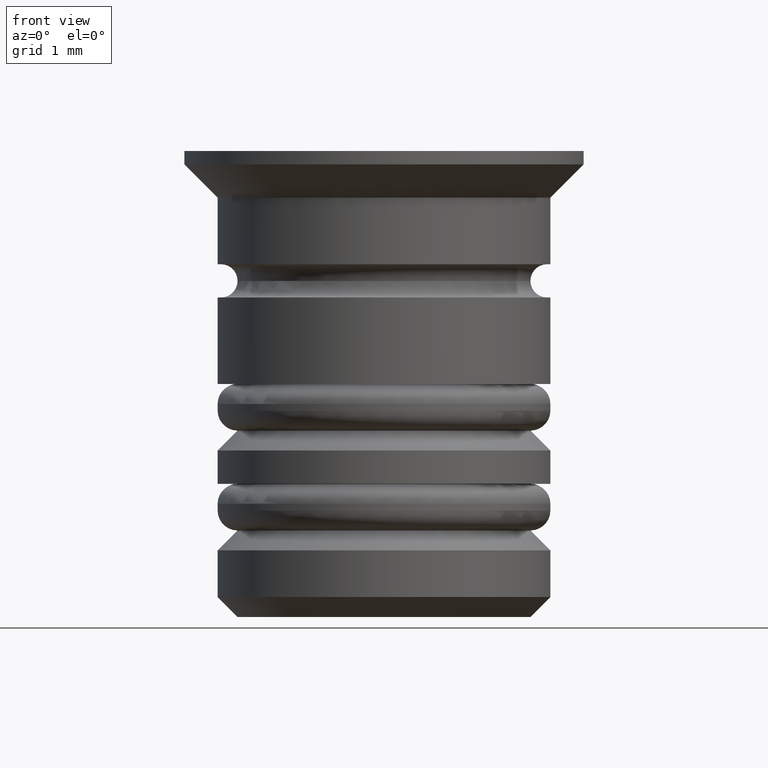
[diagram: clean part render]
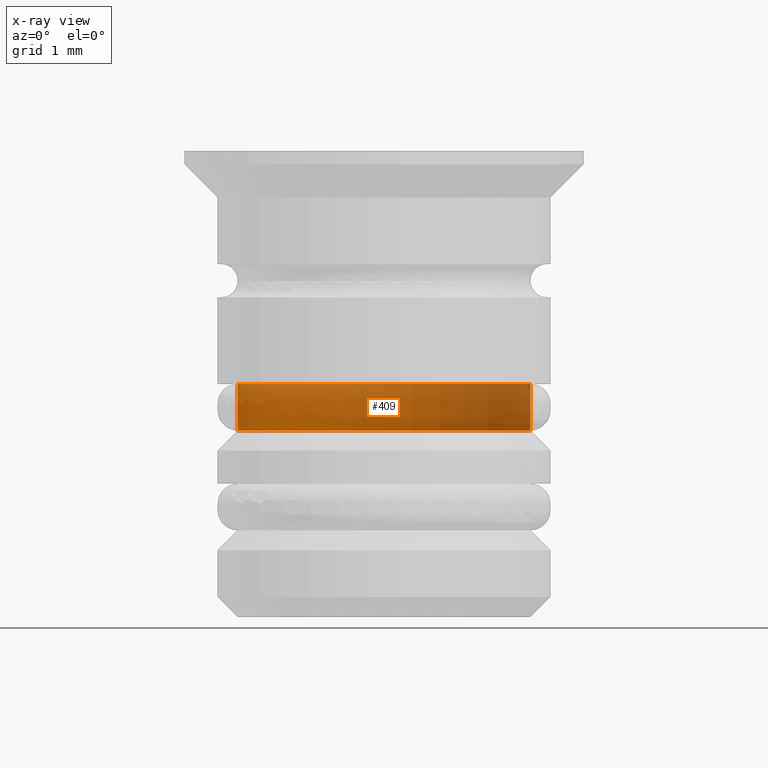
[diagram: x-ray — body ghosted, one internal face saturated and labeled with its STEP entity id]
A machine part, front view, then the same camera in x-ray: the body is ghosted and one INTERNAL B-rep face — a face not visible from any outside direction — is saturated and labeled: STEP entity #409.
In plain terms, the highlighted cylindrical surface (partial cylindrical patch) has radius 2.2 mm, axis along (-0, -0, 1).
Its self-contained STEP definition (entity closure, byte-faithful):
#39 = DIRECTION ( 'NONE',  ( -0.000000000000000000, -0.000000000000000000, 1.000000000000000000 ) ) ;
#80 = EDGE_CURVE ( 'NONE', #1558, #1422, #1689, .T. ) ;
#179 = CYLINDRICAL_SURFACE ( 'NONE', #326, 2.200000000000002398 ) ;
#196 = DIRECTION ( 'NONE',  ( -1.000000000000000000, 0.000000000000000000, 0.000000000000000000 ) ) ;
#255 = CARTESIAN_POINT ( 'NONE',  ( 2.200000000000002398, 0.000000000000000000, 0.000000000000000000 ) ) ;
#320 = CARTESIAN_POINT ( 'NONE',  ( -2.200000000000002398, 2.694222958124179965E-16, 0.000000000000000000 ) ) ;
#326 = AXIS2_PLACEMENT_3D ( 'NONE', #1310, #39, #613 ) ;
#338 = CARTESIAN_POINT ( 'NONE',  ( 2.200000000000002398, 0.000000000000000000, -4.200000000000010836 ) ) ;
#373 = VERTEX_POINT ( 'NONE', #338 ) ;
#409 = ADVANCED_FACE ( 'NONE', ( #1026 ), #179, .T. ) ;
#512 = ORIENTED_EDGE ( 'NONE', *, *, #1509, .T. ) ;
#530 = VECTOR ( 'NONE', #896, 1000.000000000000000 ) ;
#613 = DIRECTION ( 'NONE',  ( 1.000000000000000000, 0.000000000000000000, 0.000000000000000000 ) ) ;
#637 = DIRECTION ( 'NONE',  ( -0.000000000000000000, -0.000000000000000000, 1.000000000000000000 ) ) ;
#667 = VERTEX_POINT ( 'NONE', #1158 ) ;
#672 = ORIENTED_EDGE ( 'NONE', *, *, #80, .F. ) ;
#704 = EDGE_LOOP ( 'NONE', ( #512, #1052, #672, #1454 ) ) ;
#856 = CARTESIAN_POINT ( 'NONE',  ( -2.200000000000001954, 2.694222958124179472E-16, -3.500000000000003553 ) ) ;
#863 = VECTOR ( 'NONE', #1395, 1000.000000000000000 ) ;
#869 = LINE ( 'NONE', #320, #530 ) ;
#896 = DIRECTION ( 'NONE',  ( -0.000000000000000000, -0.000000000000000000, 1.000000000000000000 ) ) ;
#1007 = CARTESIAN_POINT ( 'NONE',  ( 2.200000000000001954, 0.000000000000000000, -3.500000000000003553 ) ) ;
#1026 = FACE_OUTER_BOUND ( 'NONE', #704, .T. ) ;
#1052 = ORIENTED_EDGE ( 'NONE', *, *, #1616, .T. ) ;
#1158 = CARTESIAN_POINT ( 'NONE',  ( -2.200000000000002398, 2.694222958124179965E-16, -4.200000000000010836 ) ) ;
#1222 = CARTESIAN_POINT ( 'NONE',  ( 0.000000000000000000, 0.000000000000000000, -3.500000000000003553 ) ) ;
#1243 = CIRCLE ( 'NONE', #1618, 2.200000000000002398 ) ;
#1310 = CARTESIAN_POINT ( 'NONE',  ( 0.000000000000000000, 0.000000000000000000, 0.000000000000000000 ) ) ;
#1351 = DIRECTION ( 'NONE',  ( 1.000000000000000000, 0.000000000000000000, 0.000000000000000000 ) ) ;
#1395 = DIRECTION ( 'NONE',  ( -0.000000000000000000, -0.000000000000000000, 1.000000000000000000 ) ) ;
#1422 = VERTEX_POINT ( 'NONE', #856 ) ;
#1436 = DIRECTION ( 'NONE',  ( -0.000000000000000000, -0.000000000000000000, 1.000000000000000000 ) ) ;
#1446 = CARTESIAN_POINT ( 'NONE',  ( 0.000000000000000000, 0.000000000000000000, -4.200000000000010836 ) ) ;
#1454 = ORIENTED_EDGE ( 'NONE', *, *, #1761, .F. ) ;
#1509 = EDGE_CURVE ( 'NONE', #373, #667, #1243, .T. ) ;
#1558 = VERTEX_POINT ( 'NONE', #1007 ) ;
#1616 = EDGE_CURVE ( 'NONE', #667, #1422, #869, .T. ) ;
#1618 = AXIS2_PLACEMENT_3D ( 'NONE', #1446, #1436, #196 ) ;
#1689 = CIRCLE ( 'NONE', #1786, 2.200000000000001954 ) ;
#1761 = EDGE_CURVE ( 'NONE', #373, #1558, #1821, .T. ) ;
#1786 = AXIS2_PLACEMENT_3D ( 'NONE', #1222, #637, #1351 ) ;
#1821 = LINE ( 'NONE', #255, #863 ) ;